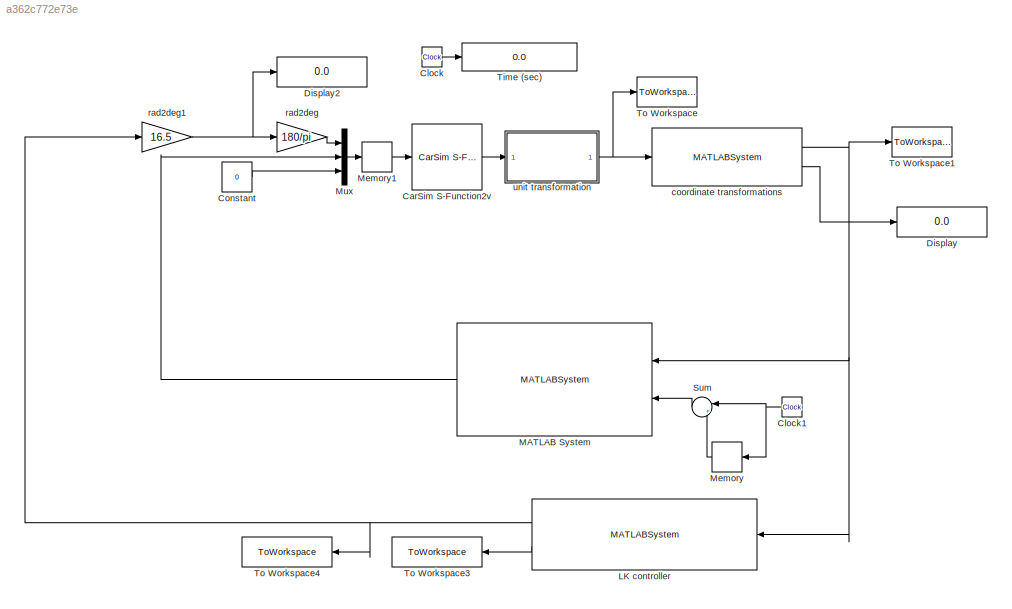
MODEL slx_a362c772e73e
KIND model
CONFIG AbsTol = 1e-6
CONFIG EnableMultiTasking = off
CONFIG FixedStep = 0.002
CONFIG MaxStep = auto
CONFIG MinStep = auto
CONFIG PreLoadFcn = addpath <path>
CONFIG RelTol = 1e-3
CONFIG SampleTimeConstraint = Unconstrained
CONFIG Solver = ode45
CONFIG SolverName = ode45
CONFIG StartTime = 0
CONFIG StopTime = 200
BLOCK [Reference] CarSim S-Function2v  REF=Solver_SF/CarSim S-Function2v
  AttributesFormatString = Vehicle Code: %<VehicleCode>
  Ports = [1, 1]
  Priority = 1
  SourceBlock = Solver_SF/CarSim S-Function2v
  SourceType = Vehicle math model library
BLOCK [Clock] Clock
BLOCK [Clock] Clock1
BLOCK [Constant] Constant
  Value = 0
BLOCK [Display] Display
  Decimation = 1
  Ports = [1]
BLOCK [Display] Display2
  Decimation = 1
  Ports = [1]
BLOCK [MATLABSystem] LK controller
  Caf = 140000
  Car = 120000
  H_u = 4
  H_x = diag([1 0 0.5 0])
  Iz = 3270.0
  M = 1800
  MaskDisplay = disp('lk_pcis_controller');\nport_label('input',1,'lk_acc_state');\nport_label('output',1,'delta_f');\nport_label('output',2,'control_info');
  MaskType = lk_pcis_controller
  Ports = [1, 2]
  SimulateUsing = Code generation
  System = lk_pcis_controller
  f_u = 0
  f_x = [0;0;0;0]
  lf = 1.2
  lr = 1.650
  sol_opts = struct( 'DataType', 'double', 'MaxIter', 200, 'FeasibilityTol', 1e-6, 'IntegrityChecks', true )
BLOCK [MATLABSystem] MATLAB System
  K_d = 3*0.25*0.7/40
  K_i = 1.2*0.25/0.7
  K_p = 0.6*0.25
  MaskDisplay = disp('acc_pid_controller');\nport_label('input',1,'lk_acc_state');\nport_label('input',2,'dt');\nport_label('output',1,'throttle');
  MaskType = acc_pid_controller
  Ports = [2, 1]
  SimulateUsing = Code generation
  System = acc_pid_controller
  max_throttle = 0.3
  mem_length = 20
  mu_des = 28/3.6
  windup_reg = 2
BLOCK [Memory] Memory
BLOCK [Memory] Memory1
  X0 = [0;0;0]
BLOCK [Mux] Mux
  DisplayOption = bar
  Inputs = 3
  Ports = [3, 1]
BLOCK [Sum] Sum
  IconShape = round
  InputSameDT = off
  Inputs = |+-
  OutDataTypeStr = Inherit: Inherit via internal rule
  Ports = [2, 1]
  SaturateOnIntegerOverflow = off
BLOCK [Display] Time (sec)
  Decimation = 100
  Format = bank
  Ports = [1]
BLOCK [ToWorkspace] To Workspace
  FixptAsFi = on
  MaxDataPoints = inf
  Ports = [1]
  SampleTime = -1
  Save2DSignal = 3-D array (concatenate along third dimension)
  SaveFormat = Timeseries
  VariableName = rawdata
BLOCK [ToWorkspace] To Workspace1
  FixptAsFi = on
  MaxDataPoints = inf
  Ports = [1]
  SampleTime = -1
  Save2DSignal = 3-D array (concatenate along third dimension)
  SaveFormat = Timeseries
  VariableName = lk_acc_state
BLOCK [ToWorkspace] To Workspace3
  FixptAsFi = on
  MaxDataPoints = inf
  Ports = [1]
  SampleTime = -1
  Save2DSignal = 3-D array (concatenate along third dimension)
  SaveFormat = Timeseries
  VariableName = lk_control_info
BLOCK [ToWorkspace] To Workspace4
  FixptAsFi = on
  MaxDataPoints = inf
  Ports = [1]
  SampleTime = -1
  Save2DSignal = 3-D array (concatenate along third dimension)
  SaveFormat = Timeseries
  VariableName = delta_f
BLOCK [MATLABSystem] coordinate transformations
  MaskDisplay = disp('road');\nport_label('input',1,'data');\nport_label('output',1,'lk_acc_state');\nport_label('output',2,'road_left');
  MaskType = road
  N_interp = 10
  N_path = 3
  Ports = [1, 2]
  SimulateUsing = Code generation
  System = road
  circular = 0
  dt = 0.10
  h0 = 1
  lat0 = 42.30095833
  long0 = -83.69758056
  pathfile = <path>
BLOCK [Gain] rad2deg
  Gain = 180/pi
  OutDataTypeStr = Inherit: Inherit via internal rule
  ParamDataTypeStr = Inherit: Inherit via internal rule
  SaturateOnIntegerOverflow = off
BLOCK [Gain] rad2deg1
  Gain = 16.5
  OutDataTypeStr = Inherit: Inherit via internal rule
  ParamDataTypeStr = Inherit: Inherit via internal rule
  SaturateOnIntegerOverflow = off
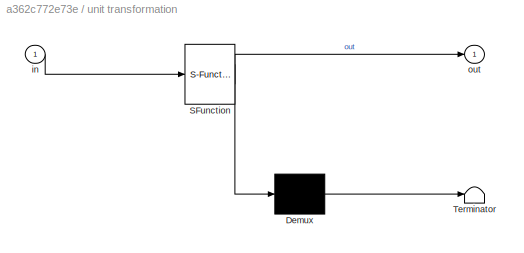
BLOCK [SubSystem] unit transformation 
  ErrorFcn = Stateflow.Translate.translate
  PermitHierarchicalResolution = ExplicitOnly
  Ports = [1, 1]
  RequestExecContextInheritance = off
  SFBlockType = MATLAB Function
  TreatAsAtomicUnit = on
  Variant = off
BLOCK [Demux] unit transformation / Demux 
  Outputs = 1
  Ports = [1, 1]
BLOCK [S-Function] unit transformation / SFunction 
  EnableBusSupport = on
  FunctionName = sf_sfun
  PortCounts = [1 2]
  Ports = [1, 2]
  SFcnIsStateOwnerBlock = off
  SFunctionDeploymentMode = off
  Tag = Stateflow S-Function carsim_experiment 1
BLOCK [Terminator] unit transformation / Terminator 
BLOCK [Inport] unit transformation /in
  IconDisplay = Port number
BLOCK [Outport] unit transformation /out
  IconDisplay = Port number
LINE CarSim S-Function2v:1 -> unit transformation :1
NET Clock1:1 -> Memory:1, Sum:1
LINE Clock:1 -> Time (sec):1
LINE Constant:1 -> Mux:3
NET LK controller:1 -> To Workspace4:1, rad2deg1:1
LINE LK controller:2 -> To Workspace3:1
LINE MATLAB System:1 -> Mux:2
LINE Memory1:1 -> CarSim S-Function2v:1
LINE Memory:1 -> Sum:2
LINE Mux:1 -> Memory1:1
LINE Sum:1 -> MATLAB System:2
NET coordinate transformations:1 -> LK controller:1, MATLAB System:1, To Workspace1:1
LINE coordinate transformations:2 -> Display:1
NET rad2deg1:1 -> Display2:1, rad2deg:1
LINE rad2deg:1 -> Mux:1
NET unit transformation :1 -> To Workspace:1, coordinate transformations:1
note: NET lines group one-source signal fan-out (src -> all destinations, sorted); 1:1 wires keep LINE
CHART unit transformation
 states=1 transitions=1
  STATE_LABEL 'eML_blk_kernel()'
  STATE_LABEL 'SCRIPT:\nfunction out  = fcn(in)\n    out.latitude = in(1);\n    out.longitude = in(2);\n    out.el = 0;\n    out.Yaw = deg2rad(in(3));\n    out.YawRate = deg2rad(in(4));\n    out.Vx = in(5)/3.6;\n    out.Vy = in(6)/3.6;\n    out.x_gps_cg = in(7)/1000;\n    out.y_gps_cg = in(8)/1000;\n    out.steer_L1 = deg2rad(in(9));\n    out.steer_R1 = deg2rad(in(10));\n    out.Alpha_L1 = deg2rad(in(11));\n    out.Alpha_R1 =...<+570ch>'
note: 2 file-system paths scrubbed to <path> (not preserved elsewhere — flat text is the only slx artifact)
